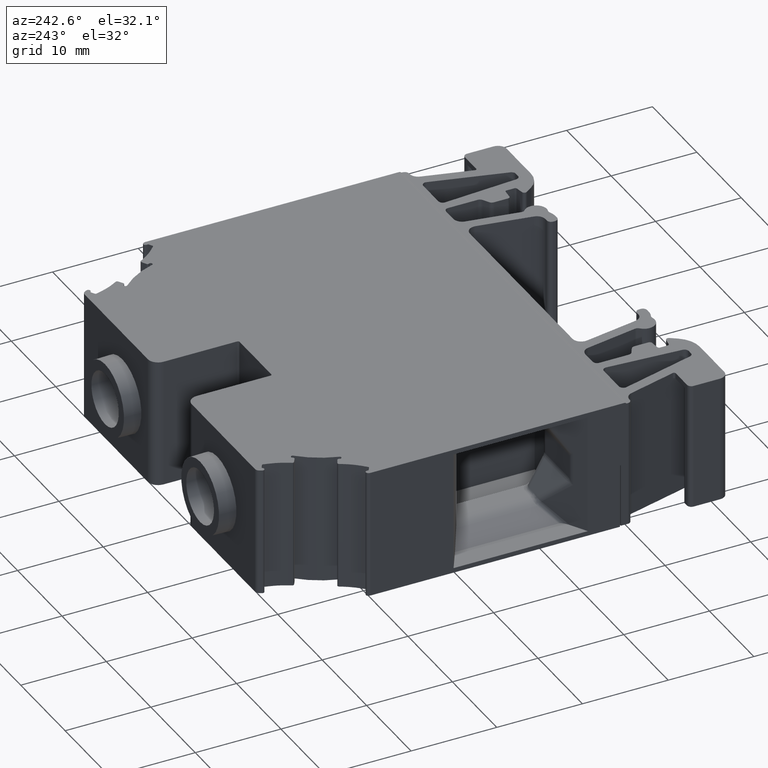
[diagram: clean part render]
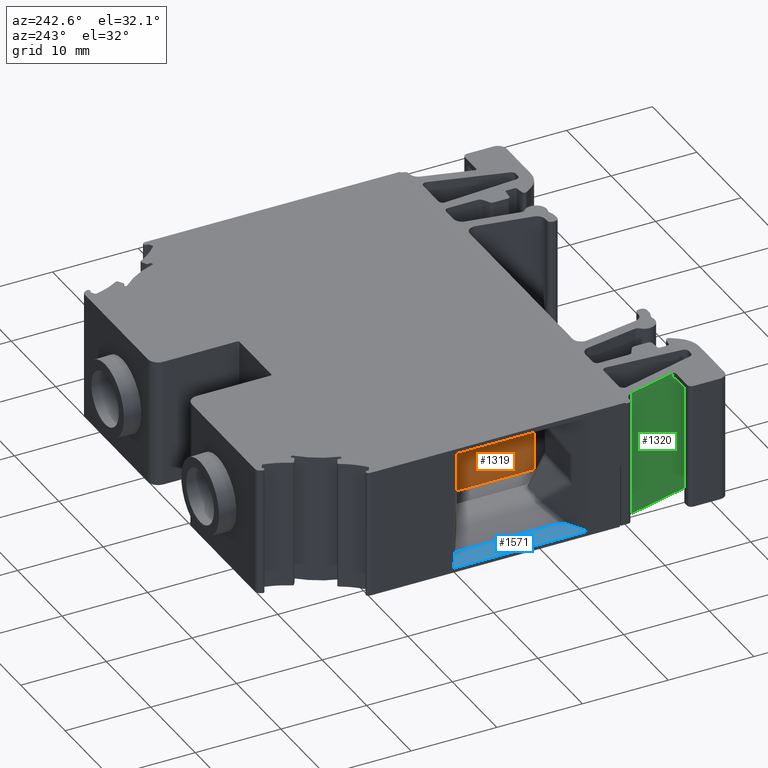
[diagram: same view with three faces highlighted in distinct colors, each labeled with its STEP entity id]
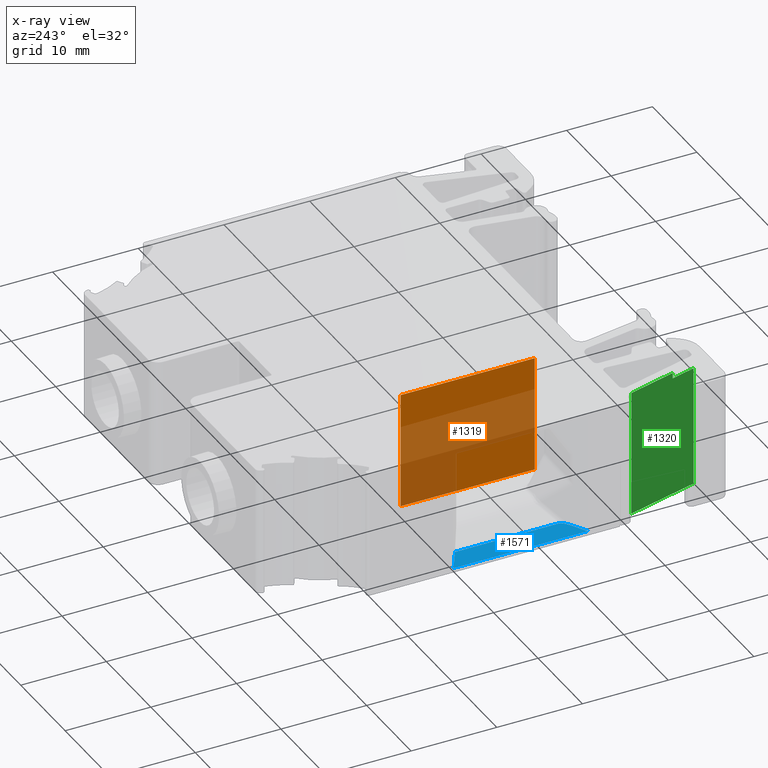
[diagram: x-ray of the same camera — body ghosted, the three highlighted faces saturated]
A machine part, auxiliary view with three faces highlighted in distinct colors.
The next image is the same camera in x-ray (body ghosted, the three faces saturated) — at least one of them is partly hidden behind the body in this view.
Their STEP definitions:

[orange] entity #1319 — the highlighted planar face has unit normal (-1, -0, -0).
#1319 = ADVANCED_FACE ( 'NONE', ( #7380 ), #7357, .T. ) ;
#6148 = VERTEX_POINT ( 'NONE', #17627 ) ;
#6161 = VERTEX_POINT ( 'NONE', #17637 ) ;
#6183 = VERTEX_POINT ( 'NONE', #17587 ) ;
#6191 = VERTEX_POINT ( 'NONE', #17622 ) ;
#7330 = DIRECTION ( 'NONE',  ( -1.024210827134004000E-013, 0.0000000000000000000, 1.000000000000000000 ) ) ;
#7344 = CARTESIAN_POINT ( 'NONE',  ( -319.7618790817505200, 310.3596324577599700, -26.34572616097074900 ) ) ;
#7357 = PLANE ( 'NONE',  #10240 ) ;
#7375 = DIRECTION ( 'NONE',  ( -1.000000000000000000, -4.269406098711145400E-027, -1.024210827134004000E-013 ) ) ;
#7380 = FACE_OUTER_BOUND ( 'NONE', #15829, .T. ) ;
#8613 = VECTOR ( 'NONE', #15302, 1000.000000000000000 ) ;
#8617 = VECTOR ( 'NONE', #15373, 1000.000000000000000 ) ;
#8623 = VECTOR ( 'NONE', #15240, 1000.000000000000000 ) ;
#8632 = VECTOR ( 'NONE', #15225, 1000.000000000000000 ) ;
#10240 = AXIS2_PLACEMENT_3D ( 'NONE', #7344, #7375, #7330 ) ;
#10461 = ORIENTED_EDGE ( 'NONE', *, *, #19953, .T. ) ;
#10469 = ORIENTED_EDGE ( 'NONE', *, *, #19966, .T. ) ;
#10470 = ORIENTED_EDGE ( 'NONE', *, *, #19977, .F. ) ;
#10477 = ORIENTED_EDGE ( 'NONE', *, *, #19954, .T. ) ;
#15211 = LINE ( 'NONE', #15250, #8623 ) ;
#15225 = DIRECTION ( 'NONE',  ( 1.024210827134004000E-013, -4.089659118477320100E-014, -1.000000000000000000 ) ) ;
#15232 = LINE ( 'NONE', #15271, #8613 ) ;
#15240 = DIRECTION ( 'NONE',  ( -1.829426059639324900E-027, 1.000000000000000000, -2.382302524470955100E-014 ) ) ;
#15243 = LINE ( 'NONE', #15252, #8632 ) ;
#15250 = CARTESIAN_POINT ( 'NONE',  ( -319.7618790817435300, 310.3596324577584900, -91.49229317583588300 ) ) ;
#15252 = CARTESIAN_POINT ( 'NONE',  ( -319.7618790817505200, 310.3596324577599700, -26.34572616097074900 ) ) ;
#15271 = CARTESIAN_POINT ( 'NONE',  ( -319.7618790817420500, 310.3596324577584900, -105.0880507515664100 ) ) ;
#15302 = DIRECTION ( 'NONE',  ( 2.520712989351190200E-027, -1.000000000000000000, 1.707356594006365000E-014 ) ) ;
#15309 = CARTESIAN_POINT ( 'NONE',  ( -319.7618790817505200, 294.7123112744935200, -26.34572616097004900 ) ) ;
#15371 = LINE ( 'NONE', #15309, #8617 ) ;
#15373 = DIRECTION ( 'NONE',  ( 1.024210827134004000E-013, -4.089659118477320100E-014, -1.000000000000000000 ) ) ;
#15829 = EDGE_LOOP ( 'NONE', ( #10470, #10469, #10461, #10477 ) ) ;
#17587 = CARTESIAN_POINT ( 'NONE',  ( -319.7618790817435300, 310.3596324577574700, -91.49229317583588300 ) ) ;
#17622 = CARTESIAN_POINT ( 'NONE',  ( -319.7618790817420500, 310.3596324577570200, -105.0880507515666000 ) ) ;
#17627 = CARTESIAN_POINT ( 'NONE',  ( -319.7618790817420500, 294.7123112744905000, -105.0880507515664100 ) ) ;
#17637 = CARTESIAN_POINT ( 'NONE',  ( -319.7618790817420500, 294.7123112744914700, -91.49229317583559900 ) ) ;
#19953 = EDGE_CURVE ( 'NONE', #6183, #6191, #15243, .T. ) ;
#19954 = EDGE_CURVE ( 'NONE', #6191, #6148, #15232, .T. ) ;
#19966 = EDGE_CURVE ( 'NONE', #6161, #6183, #15211, .T. ) ;
#19977 = EDGE_CURVE ( 'NONE', #6161, #6148, #15371, .T. ) ;

[blue] entity #1571 — the highlighted planar face has unit normal (0, -0, -1).
#1571 = ADVANCED_FACE ( 'NONE', ( #3187 ), #3137, .F. ) ;
#3137 = PLANE ( 'NONE',  #11607 ) ;
#3157 = DIRECTION ( 'NONE',  ( -4.803132084815849600E-007, 0.9999999999998846500, -1.695683682837429800E-014 ) ) ;
#3187 = FACE_OUTER_BOUND ( 'NONE', #15717, .T. ) ;
#3190 = CARTESIAN_POINT ( 'NONE',  ( -301.2192777558910300, 329.9065935291660000, -105.2401719637034000 ) ) ;
#3193 = DIRECTION ( 'NONE',  ( 5.121053967969460400E-014, -1.695681223127763200E-014, -1.000000000000000000 ) ) ;
#4056 = VECTOR ( 'NONE', #5717, 1000.000000000000200 ) ;
#4090 = VECTOR ( 'NONE', #16577, 1000.000000000000000 ) ;
#4158 = VECTOR ( 'NONE', #5814, 1000.000000000000000 ) ;
#4572 = VECTOR ( 'NONE', #16416, 1000.000000000000100 ) ;
#5051 = EDGE_CURVE ( 'NONE', #6087, #6095, #16400, .T. ) ;
#5071 = EDGE_CURVE ( 'NONE', #6135, #6095, #10180, .T. ) ;
#5112 = EDGE_CURVE ( 'NONE', #6087, #6189, #16567, .T. ) ;
#5143 = EDGE_CURVE ( 'NONE', #6129, #6135, #5706, .T. ) ;
#5168 = EDGE_CURVE ( 'NONE', #6189, #6129, #5827, .T. ) ;
#5706 = LINE ( 'NONE', #5711, #4056 ) ;
#5711 = CARTESIAN_POINT ( 'NONE',  ( -326.9050916684234400, 298.6449287656090000, -105.2401719637061900 ) ) ;
#5717 = DIRECTION ( 'NONE',  ( 0.8660251636277251900, 0.5000004159633986100, 1.245704377524077200E-013 ) ) ;
#5792 = CARTESIAN_POINT ( 'NONE',  ( -332.7692912654559900, 329.9065935291660000, -105.2401719637050000 ) ) ;
#5814 = DIRECTION ( 'NONE',  ( 1.714859476117360000E-028, -1.000000000000000000, 1.695681223127760400E-014 ) ) ;
#5827 = LINE ( 'NONE', #5792, #4158 ) ;
#6087 = VERTEX_POINT ( 'NONE', #17568 ) ;
#6095 = VERTEX_POINT ( 'NONE', #17528 ) ;
#6129 = VERTEX_POINT ( 'NONE', #17542 ) ;
#6135 = VERTEX_POINT ( 'NONE', #17582 ) ;
#6189 = VERTEX_POINT ( 'NONE', #17606 ) ;
#10180 =( BOUNDED_CURVE ( )  B_SPLINE_CURVE ( 3, ( #16507, #16496, #16479, #16494 ),
 .UNSPECIFIED., .F., .T. ) 
 B_SPLINE_CURVE_WITH_KNOTS ( ( 4, 4 ),
 ( 1.570796326807651500, 2.888912398543569600 ),
 .UNSPECIFIED. ) 
 CURVE ( )  GEOMETRIC_REPRESENTATION_ITEM ( )  RATIONAL_B_SPLINE_CURVE ( ( 1.000000000000000000, 0.8603796100111004200, 0.8603796100111004200, 1.000000000000000000 ) ) 
 REPRESENTATION_ITEM ( '' )  );
#11607 = AXIS2_PLACEMENT_3D ( 'NONE', #3190, #3193, #3157 ) ;
#14948 = ORIENTED_EDGE ( 'NONE', *, *, #5143, .T. ) ;
#15031 = ORIENTED_EDGE ( 'NONE', *, *, #5051, .F. ) ;
#15077 = ORIENTED_EDGE ( 'NONE', *, *, #5112, .T. ) ;
#15084 = ORIENTED_EDGE ( 'NONE', *, *, #5168, .T. ) ;
#15100 = ORIENTED_EDGE ( 'NONE', *, *, #5071, .T. ) ;
#15717 = EDGE_LOOP ( 'NONE', ( #15031, #15077, #15084, #14948, #15100 ) ) ;
#16398 = CARTESIAN_POINT ( 'NONE',  ( -330.0467685097115100, 312.5825856294030100, -105.2401719637068000 ) ) ;
#16400 = LINE ( 'NONE', #16398, #4572 ) ;
#16416 = DIRECTION ( 'NONE',  ( 4.803132270005357500E-007, -0.9999999999998846500, 1.695688602257504400E-014 ) ) ;
#16479 = CARTESIAN_POINT ( 'NONE',  ( -330.0467610247031300, 296.9988434816059500, -105.2401719637234400 ) ) ;
#16494 = CARTESIAN_POINT ( 'NONE',  ( -330.0467611520380200, 297.2640958535050100, -105.2401719637066000 ) ) ;
#16496 = CARTESIAN_POINT ( 'NONE',  ( -330.3373302785911400, 296.6633226820312600, -105.2401719637235000 ) ) ;
#16507 = CARTESIAN_POINT ( 'NONE',  ( -330.7967607361820200, 296.3980700894480300, -105.2401719637068000 ) ) ;
#16567 = LINE ( 'NONE', #16576, #4090 ) ;
#16576 = CARTESIAN_POINT ( 'NONE',  ( -327.6012485568415400, 307.9440004374020000, -105.2401719637299900 ) ) ;
#16577 = DIRECTION ( 'NONE',  ( -0.8660256439409554900, 0.4999995840364803200, -1.415273237749833000E-013 ) ) ;
#17528 = CARTESIAN_POINT ( 'NONE',  ( -330.0467611520380200, 297.2640958535050100, -105.2401719637066000 ) ) ;
#17542 = CARTESIAN_POINT ( 'NONE',  ( -332.7692912654565000, 295.2592277941424800, -105.2401719637044000 ) ) ;
#17568 = CARTESIAN_POINT ( 'NONE',  ( -330.0467669598970100, 309.3559195795614900, -105.2401719637044000 ) ) ;
#17582 = CARTESIAN_POINT ( 'NONE',  ( -330.7967607361820200, 296.3980700894480300, -105.2401719637068000 ) ) ;
#17606 = CARTESIAN_POINT ( 'NONE',  ( -332.7692912654565000, 310.9277679766995000, -105.2401719637046000 ) ) ;

[green] entity #1320 — the highlighted planar face has unit normal (0.9659, 0.2588, 0).
#1160 = VECTOR ( 'NONE', #2942, 1000.000000000000100 ) ;
#1320 = ADVANCED_FACE ( 'NONE', ( #7347 ), #7332, .F. ) ;
#2942 = DIRECTION ( 'NONE',  ( -0.2587861696880514600, 0.9659346346302046800, -3.299890300715214100E-014 ) ) ;
#3404 = CARTESIAN_POINT ( 'NONE',  ( -332.3137832289179400, 293.5434299183465300, -90.94017196370150200 ) ) ;
#3410 = LINE ( 'NONE', #3404, #1160 ) ;
#4400 = VECTOR ( 'NONE', #18467, 1000.000000000000100 ) ;
#4457 = VECTOR ( 'NONE', #5575, 1000.000000000000000 ) ;
#4657 = EDGE_CURVE ( 'NONE', #17151, #17137, #3410, .T. ) ;
#4910 = EDGE_CURVE ( 'NONE', #16973, #17289, #18466, .T. ) ;
#5245 = EDGE_CURVE ( 'NONE', #16973, #17039, #5607, .T. ) ;
#5574 = CARTESIAN_POINT ( 'NONE',  ( -328.9360871098809900, 280.9359800280909700, -105.6401719637009900 ) ) ;
#5575 = DIRECTION ( 'NONE',  ( -5.121054135670019500E-014, 2.044829559238660400E-014, 1.000000000000000000 ) ) ;
#5607 = LINE ( 'NONE', #5574, #4457 ) ;
#6176 = VERTEX_POINT ( 'NONE', #17616 ) ;
#7332 = PLANE ( 'NONE',  #10234 ) ;
#7347 = FACE_OUTER_BOUND ( 'NONE', #15863, .T. ) ;
#7348 = CARTESIAN_POINT ( 'NONE',  ( -332.3137832289169800, 293.5434299183460200, -105.6401719637014100 ) ) ;
#7349 = DIRECTION ( 'NONE',  ( 0.9659346346302046800, 0.2587861696880514600, 4.417429946159637800E-014 ) ) ;
#7351 = DIRECTION ( 'NONE',  ( -0.2587861696880514600, 0.9659346346302046800, 0.0000000000000000000 ) ) ;
#8516 = VECTOR ( 'NONE', #9345, 1000.000000000000100 ) ;
#8592 = VECTOR ( 'NONE', #14998, 1000.000000000000000 ) ;
#8638 = VECTOR ( 'NONE', #15229, 1000.000000000000000 ) ;
#9037 = CARTESIAN_POINT ( 'NONE',  ( -331.1944286901634800, 289.3653731129294900, -105.6901719637012000 ) ) ;
#9336 = LINE ( 'NONE', #9341, #8516 ) ;
#9341 = CARTESIAN_POINT ( 'NONE',  ( -339.0103647959215300, 318.5388154020149600, -91.59229317583759700 ) ) ;
#9345 = DIRECTION ( 'NONE',  ( -0.2587861696880514600, 0.9659346346302046800, -4.285873615001767900E-014 ) ) ;
#9932 = CARTESIAN_POINT ( 'NONE',  ( -328.9360871098809900, 280.9359800280909700, -105.6901719637010000 ) ) ;
#10006 = CARTESIAN_POINT ( 'NONE',  ( -328.9360871098815000, 280.9359800280914200, -91.59229317583589100 ) ) ;
#10106 = CARTESIAN_POINT ( 'NONE',  ( -331.1944286901639900, 289.3653731129294900, -90.94017196370141700 ) ) ;
#10160 = CARTESIAN_POINT ( 'NONE',  ( -329.6922369529610300, 283.7583538948275100, -90.94017196370120400 ) ) ;
#10234 = AXIS2_PLACEMENT_3D ( 'NONE', #7348, #7349, #7351 ) ;
#10377 = ORIENTED_EDGE ( 'NONE', *, *, #5245, .T. ) ;
#10393 = ORIENTED_EDGE ( 'NONE', *, *, #19931, .F. ) ;
#10394 = ORIENTED_EDGE ( 'NONE', *, *, #4657, .T. ) ;
#10405 = ORIENTED_EDGE ( 'NONE', *, *, #4910, .F. ) ;
#10409 = ORIENTED_EDGE ( 'NONE', *, *, #19854, .T. ) ;
#10449 = ORIENTED_EDGE ( 'NONE', *, *, #19964, .T. ) ;
#14998 = DIRECTION ( 'NONE',  ( -5.121054135670019500E-014, 2.044829559238660400E-014, 1.000000000000000000 ) ) ;
#15023 = CARTESIAN_POINT ( 'NONE',  ( -331.1944286901634800, 289.3653731129294900, -105.6401719637014100 ) ) ;
#15070 = LINE ( 'NONE', #15023, #8592 ) ;
#15223 = CARTESIAN_POINT ( 'NONE',  ( -329.6922369529610300, 283.7583538948275100, -91.14017196370119200 ) ) ;
#15229 = DIRECTION ( 'NONE',  ( -5.121054135670019500E-014, 2.044829559238660400E-014, 1.000000000000000000 ) ) ;
#15306 = LINE ( 'NONE', #15223, #8638 ) ;
#15863 = EDGE_LOOP ( 'NONE', ( #10449, #10394, #10393, #10405, #10377, #10409 ) ) ;
#16973 = VERTEX_POINT ( 'NONE', #9932 ) ;
#17039 = VERTEX_POINT ( 'NONE', #10006 ) ;
#17137 = VERTEX_POINT ( 'NONE', #10106 ) ;
#17151 = VERTEX_POINT ( 'NONE', #10160 ) ;
#17289 = VERTEX_POINT ( 'NONE', #9037 ) ;
#17616 = CARTESIAN_POINT ( 'NONE',  ( -329.6922369529610300, 283.7583538948275100, -91.59229317583610500 ) ) ;
#18461 = CARTESIAN_POINT ( 'NONE',  ( -332.3137832289169800, 293.5434299183460200, -105.6901719637014200 ) ) ;
#18466 = LINE ( 'NONE', #18461, #4400 ) ;
#18467 = DIRECTION ( 'NONE',  ( -0.2587861696880514600, 0.9659346346302046800, -3.299890300715214100E-014 ) ) ;
#19854 = EDGE_CURVE ( 'NONE', #17039, #6176, #9336, .T. ) ;
#19931 = EDGE_CURVE ( 'NONE', #17289, #17137, #15070, .T. ) ;
#19964 = EDGE_CURVE ( 'NONE', #6176, #17151, #15306, .T. ) ;